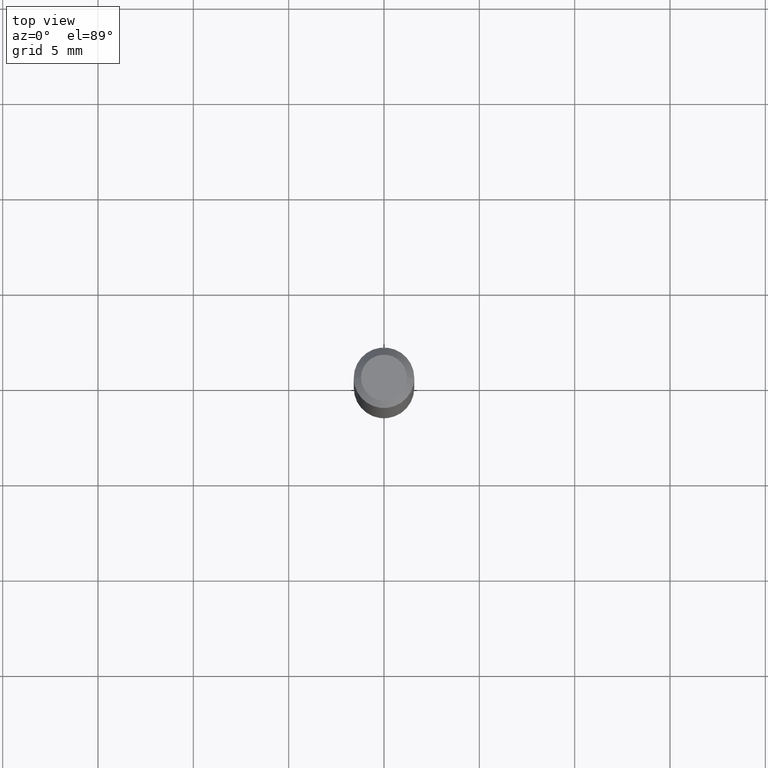
[diagram: clean part render]
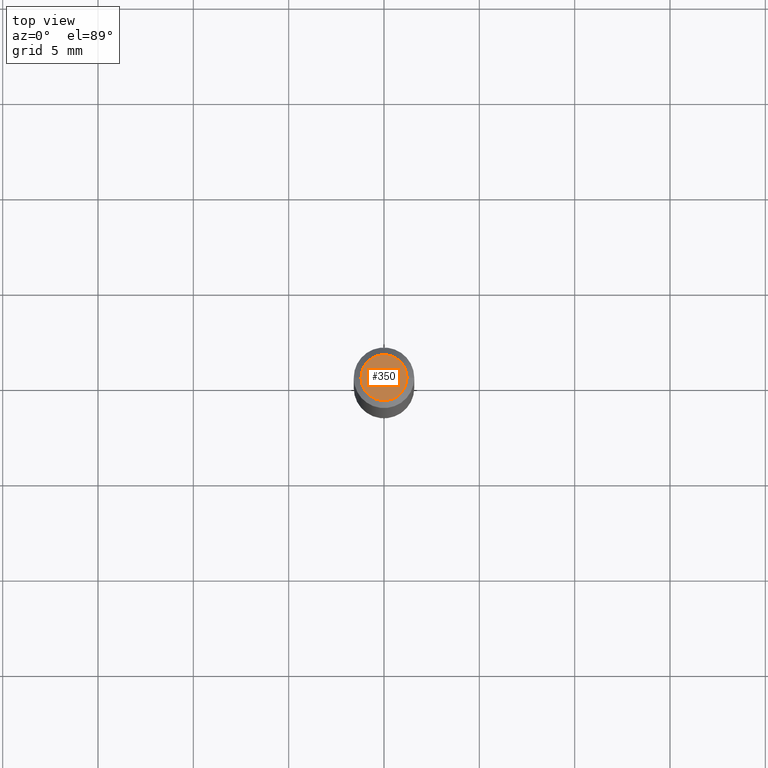
[diagram: same view with one face highlighted and labeled with its STEP entity id]
A machine part, top view. The second image highlights one B-rep face of the part: STEP entity #350.
In plain terms, the highlighted planar face has unit normal (0, -0, -1).
Its self-contained STEP definition (entity closure, byte-faithful):
#2 = DIRECTION ( 'NONE',  ( -2.445468806185136597E-29, 3.491481338843145583E-15, 1.000000000000000000 ) ) ;
#11 = CARTESIAN_POINT ( 'NONE',  ( -6.641529175093299695E-45, 9.482343474417248123E-31, 2.715851111367844914E-16 ) ) ;
#59 = DIRECTION ( 'NONE',  ( -1.000000000000000000, 6.982962677686265922E-15, -4.876176775795935793E-29 ) ) ;
#151 = DIRECTION ( 'NONE',  ( 1.000000000000000000, -6.982962677686267499E-15, 4.852736867747366768E-29 ) ) ;
#156 = CARTESIAN_POINT ( 'NONE',  ( -0.04749999999999999362, 3.578768372314215436E-16, 2.715851111367820755E-16 ) ) ;
#158 = FACE_OUTER_BOUND ( 'NONE', #380, .T. ) ;
#168 = PLANE ( 'NONE',  #347 ) ;
#193 = VERTEX_POINT ( 'NONE', #365 ) ;
#197 = ORIENTED_EDGE ( 'NONE', *, *, #228, .T. ) ;
#228 = EDGE_CURVE ( 'NONE', #304, #193, #387, .T. ) ;
#232 = DIRECTION ( 'NONE',  ( -2.445468806185136597E-29, 3.491481338843145583E-15, 1.000000000000000000 ) ) ;
#268 = DIRECTION ( 'NONE',  ( 2.438088387897960049E-29, -3.491481338843145188E-15, -1.000000000000000000 ) ) ;
#272 = AXIS2_PLACEMENT_3D ( 'NONE', #360, #2, #151 ) ;
#304 = VERTEX_POINT ( 'NONE', #156 ) ;
#336 = ORIENTED_EDGE ( 'NONE', *, *, #429, .T. ) ;
#338 = DIRECTION ( 'NONE',  ( 1.000000000000000000, -6.982962677686267499E-15, 4.852736867747366768E-29 ) ) ;
#339 = CIRCLE ( 'NONE', #444, 0.04749999999999999362 ) ;
#347 = AXIS2_PLACEMENT_3D ( 'NONE', #441, #268, #59 ) ;
#350 = ADVANCED_FACE ( 'NONE', ( #158 ), #168, .F. ) ;
#360 = CARTESIAN_POINT ( 'NONE',  ( -6.641529175093299695E-45, 9.482343474417248123E-31, 2.715851111367844914E-16 ) ) ;
#365 = CARTESIAN_POINT ( 'NONE',  ( 0.04749999999999999362, -4.035134999187573693E-16, 2.715851111367870552E-16 ) ) ;
#380 = EDGE_LOOP ( 'NONE', ( #197, #336 ) ) ;
#387 = CIRCLE ( 'NONE', #272, 0.04749999999999999362 ) ;
#429 = EDGE_CURVE ( 'NONE', #193, #304, #339, .T. ) ;
#441 = CARTESIAN_POINT ( 'NONE',  ( 3.316907271900976096E-16, 0.04749999999999999362, -3.005280802665715689E-17 ) ) ;
#444 = AXIS2_PLACEMENT_3D ( 'NONE', #11, #232, #338 ) ;